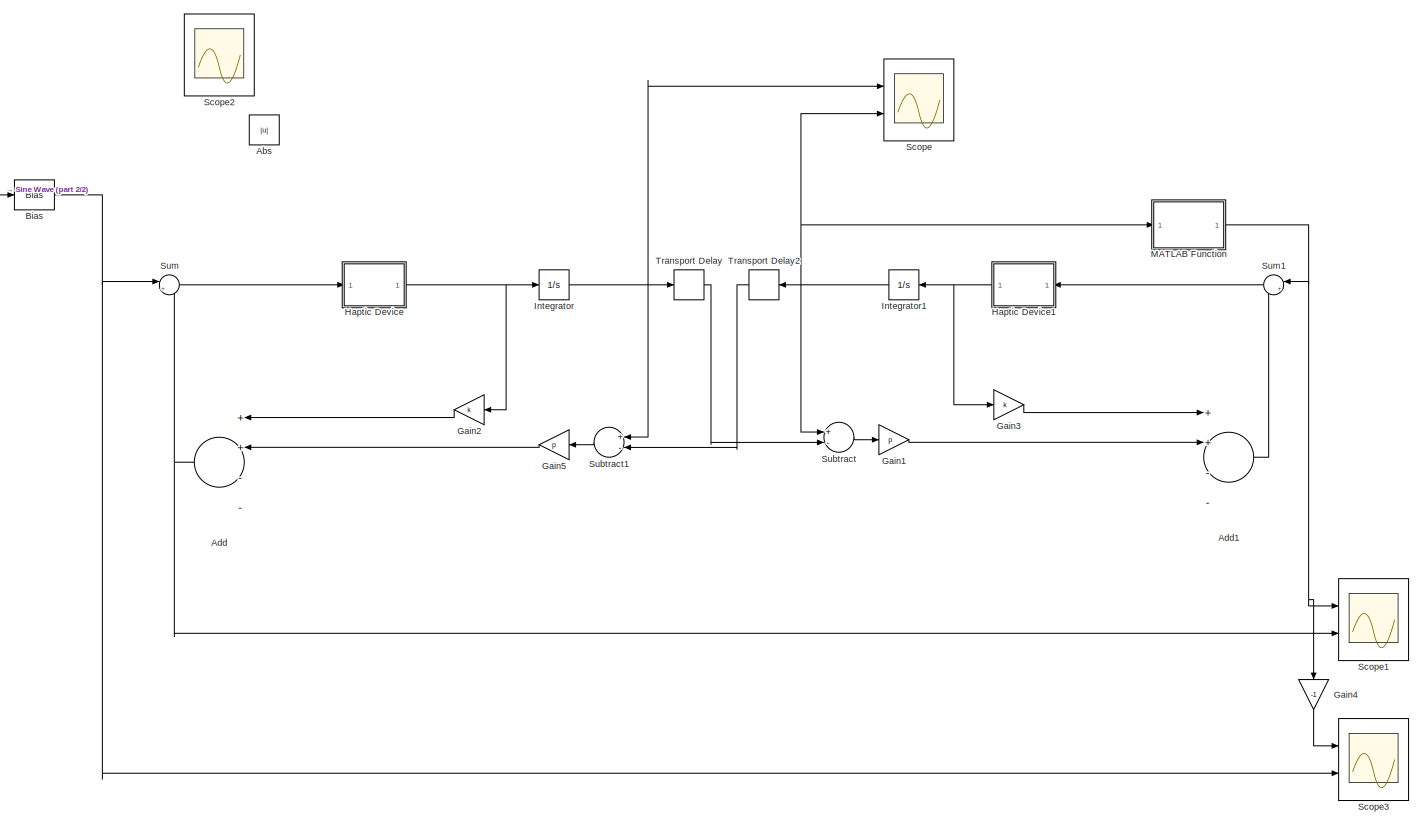
[diagram: root canvas - part 1/2, most of the canvas]
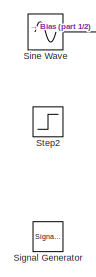
[diagram: root canvas - part 2/2, middle left region]
MODEL slx_5d9b87631e34
KIND model
CONFIG AbsTol = auto
CONFIG FixedStep = auto
CONFIG MaxStep = auto
CONFIG MinStep = auto
CONFIG RelTol = 1e-3
CONFIG SampleTimeConstraint = Unconstrained
CONFIG Solver = VariableStepAuto
CONFIG SolverMode = Auto
CONFIG SolverName = VariableStepAuto
CONFIG StartTime = 0.0
CONFIG StopTime = 100
BLOCK [Abs] Abs
  SaturateOnIntegerOverflow = off
BLOCK [Sum] Add
  InputSameDT = off
  Inputs = ++--
  OutDataTypeStr = Inherit: Inherit via internal rule
  Ports = [4, 1]
  SaturateOnIntegerOverflow = off
BLOCK [Sum] Add1
  InputSameDT = off
  Inputs = ++--
  OutDataTypeStr = Inherit: Inherit via internal rule
  Ports = [4, 1]
  SaturateOnIntegerOverflow = off
BLOCK [Bias] Bias
  Bias = 1
  SaturateOnIntegerOverflow = off
BLOCK [Gain] Gain1
  Gain = p
  OutDataTypeStr = Inherit: Inherit via internal rule
  ParamDataTypeStr = Inherit: Inherit via internal rule
  SaturateOnIntegerOverflow = off
BLOCK [Gain] Gain2
  Gain = k
  OutDataTypeStr = Inherit: Inherit via internal rule
  ParamDataTypeStr = Inherit: Inherit via internal rule
  SaturateOnIntegerOverflow = off
BLOCK [Gain] Gain3
  Gain = k
  OutDataTypeStr = Inherit: Inherit via internal rule
  ParamDataTypeStr = Inherit: Inherit via internal rule
  SaturateOnIntegerOverflow = off
BLOCK [Gain] Gain4
  Gain = -1
  OutDataTypeStr = Inherit: Inherit via internal rule
  ParamDataTypeStr = Inherit: Inherit via internal rule
  SaturateOnIntegerOverflow = off
BLOCK [Gain] Gain5
  Gain = p
  OutDataTypeStr = Inherit: Inherit via internal rule
  ParamDataTypeStr = Inherit: Inherit via internal rule
  SaturateOnIntegerOverflow = off
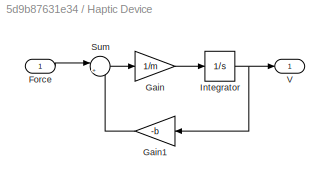
BLOCK [SubSystem] Haptic Device
  Ports = [1, 1]
  RequestExecContextInheritance = off
  Variant = off
BLOCK [Inport] Haptic Device/Force
  IconDisplay = Port number
BLOCK [Gain] Haptic Device/Gain
  Gain = 1/m
  OutDataTypeStr = Inherit: Inherit via internal rule
  ParamDataTypeStr = Inherit: Inherit via internal rule
  SaturateOnIntegerOverflow = off
BLOCK [Gain] Haptic Device/Gain1
  Gain = -b
  OutDataTypeStr = Inherit: Inherit via internal rule
  ParamDataTypeStr = Inherit: Inherit via internal rule
  SaturateOnIntegerOverflow = off
BLOCK [Integrator] Haptic Device/Integrator
  Ports = [1, 1]
BLOCK [Sum] Haptic Device/Sum
  IconShape = round
  InputSameDT = off
  Inputs = |++
  OutDataTypeStr = Inherit: Inherit via internal rule
  Ports = [2, 1]
  SaturateOnIntegerOverflow = off
BLOCK [Outport] Haptic Device/V
  IconDisplay = Port number
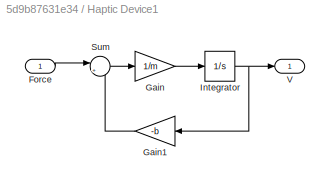
BLOCK [SubSystem] Haptic Device1
  Ports = [1, 1]
  RequestExecContextInheritance = off
  Variant = off
BLOCK [Inport] Haptic Device1/Force
  IconDisplay = Port number
BLOCK [Gain] Haptic Device1/Gain
  Gain = 1/m
  OutDataTypeStr = Inherit: Inherit via internal rule
  ParamDataTypeStr = Inherit: Inherit via internal rule
  SaturateOnIntegerOverflow = off
BLOCK [Gain] Haptic Device1/Gain1
  Gain = -b
  OutDataTypeStr = Inherit: Inherit via internal rule
  ParamDataTypeStr = Inherit: Inherit via internal rule
  SaturateOnIntegerOverflow = off
BLOCK [Integrator] Haptic Device1/Integrator
  Ports = [1, 1]
BLOCK [Sum] Haptic Device1/Sum
  IconShape = round
  InputSameDT = off
  Inputs = |++
  OutDataTypeStr = Inherit: Inherit via internal rule
  Ports = [2, 1]
  SaturateOnIntegerOverflow = off
BLOCK [Outport] Haptic Device1/V
  IconDisplay = Port number
BLOCK [Integrator] Integrator
  Ports = [1, 1]
BLOCK [Integrator] Integrator1
  Ports = [1, 1]
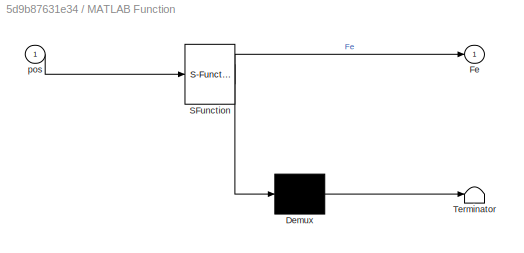
BLOCK [SubSystem] MATLAB Function
  ErrorFcn = Stateflow.Translate.translate
  PermitHierarchicalResolution = ExplicitOnly
  Ports = [1, 1]
  RequestExecContextInheritance = off
  SFBlockType = MATLAB Function
  TreatAsAtomicUnit = on
  Variant = off
BLOCK [Demux] MATLAB Function/ Demux 
  Outputs = 1
  Ports = [1, 1]
BLOCK [S-Function] MATLAB Function/ SFunction 
  EnableBusSupport = on
  FunctionName = sf_sfun
  PortCounts = [1 2]
  Ports = [1, 2]
  SFunctionDeploymentMode = off
  Tag = Stateflow S-Function Position_Drift_Checking 2
BLOCK [Terminator] MATLAB Function/ Terminator 
BLOCK [Outport] MATLAB Function/Fe
  IconDisplay = Port number
BLOCK [Inport] MATLAB Function/pos
  IconDisplay = Port number
BLOCK [Scope] Scope
  NumInputPorts = 2
  Ports = [2]
  ScopeSpecificationString = Simulink.scopes.TimeScopeBlockCfg('CurrentConfiguration', extmgr.ConfigurationSet(extmgr.Configuration('Core','General UI',true),extmgr.Configuration('Core','Source UI',true),extmgr.Configuration('Sources','WiredSimulink',true,'DataLoggingVariableName','ScopeData1'),extmgr.Configuration('Visuals','Time Domain',true,'SerializedDisplays',{struct('MinYLimReal','-0.01035','MaxYLimReal','0.09316','YLab...<+1485ch>
BLOCK [Scope] Scope1
  NumInputPorts = 2
  Ports = [2]
  ScopeSpecificationString = Simulink.scopes.TimeScopeBlockCfg('CurrentConfiguration', extmgr.ConfigurationSet(extmgr.Configuration('Core','General UI',true),extmgr.Configuration('Core','Source UI',true),extmgr.Configuration('Sources','WiredSimulink',true),extmgr.Configuration('Visuals','Time Domain',true,'SerializedDisplays',{struct('MinYLimReal','-1.27312','MaxYLimReal','0.14146','YLabelReal','','MinYLimMag','0.00000','MaxY...<+1443ch>
BLOCK [Scope] Scope2
  NumInputPorts = 2
  Ports = [2]
  ScopeSpecificationString = Simulink.scopes.TimeScopeBlockCfg('CurrentConfiguration', extmgr.ConfigurationSet(extmgr.Configuration('Core','General UI',true),extmgr.Configuration('Core','Source UI',true),extmgr.Configuration('Sources','WiredSimulink',true,'DataLoggingVariableName','ScopeData2'),extmgr.Configuration('Visuals','Time Domain',true,'SerializedDisplays',{struct('MinYLimReal','-2.5','MaxYLimReal','2.5','YLabelReal',...<+1431ch>
BLOCK [Scope] Scope3
  NumInputPorts = 2
  Ports = [2]
  ScopeSpecificationString = Simulink.scopes.TimeScopeBlockCfg('CurrentConfiguration', extmgr.ConfigurationSet(extmgr.Configuration('Core','General UI',true),extmgr.Configuration('Core','Source UI',true),extmgr.Configuration('Sources','WiredSimulink',true,'DataLoggingVariableName','ScopeData1'),extmgr.Configuration('Visuals','Time Domain',true,'SerializedDisplays',{struct('MinYLimReal','-1.49984','MaxYLimReal','3.49996','YLab...<+1470ch>
BLOCK [SignalGenerator] Signal Generator
  Amplitude = -1
  Frequency = 0.05*pi
  Ports = [0, 1]
  Units = rad/sec
  WaveForm = square
BLOCK [Sin] Sine Wave
  Amplitude = 2
  Frequency = pi/5
  Ports = [0, 1]
  SampleTime = 0
BLOCK [Step] Step2
  SampleTime = 0
  Time = 0
BLOCK [Sum] Subtract
  InputSameDT = off
  Inputs = +-
  OutDataTypeStr = Inherit: Inherit via internal rule
  Ports = [2, 1]
  SaturateOnIntegerOverflow = off
BLOCK [Sum] Subtract1
  InputSameDT = off
  Inputs = +-
  OutDataTypeStr = Inherit: Inherit via internal rule
  Ports = [2, 1]
  SaturateOnIntegerOverflow = off
BLOCK [Sum] Sum
  IconShape = round
  InputSameDT = off
  Inputs = |++
  OutDataTypeStr = Inherit: Inherit via internal rule
  Ports = [2, 1]
  SaturateOnIntegerOverflow = off
BLOCK [Sum] Sum1
  IconShape = round
  InputSameDT = off
  Inputs = |++
  OutDataTypeStr = Inherit: Inherit via internal rule
  Ports = [2, 1]
  SaturateOnIntegerOverflow = off
BLOCK [TransportDelay] Transport Delay
  DelayTime = t
  Ports = [1, 1]
BLOCK [TransportDelay] Transport Delay2
  DelayTime = t
  Ports = [1, 1]
LINE Add1:1 -> Sum1:2
NET Add:1 -> Scope1:2, Sum:2
NET Bias:1 -> Scope3:2, Sum:1
LINE Gain1:1 -> Add1:2
LINE Gain2:1 -> Add:1
LINE Gain3:1 -> Add1:1
LINE Gain4:1 -> Scope3:1
LINE Gain5:1 -> Add:2
LINE Haptic Device/Force:1 -> Haptic Device/Sum:1
LINE Haptic Device/Gain1:1 -> Haptic Device/Sum:2
LINE Haptic Device/Gain:1 -> Haptic Device/Integrator:1
NET Haptic Device/Integrator:1 -> Haptic Device/Gain1:1, Haptic Device/V:1
LINE Haptic Device/Sum:1 -> Haptic Device/Gain:1
LINE Haptic Device1/Force:1 -> Haptic Device1/Sum:1
LINE Haptic Device1/Gain1:1 -> Haptic Device1/Sum:2
LINE Haptic Device1/Gain:1 -> Haptic Device1/Integrator:1
NET Haptic Device1/Integrator:1 -> Haptic Device1/Gain1:1, Haptic Device1/V:1
LINE Haptic Device1/Sum:1 -> Haptic Device1/Gain:1
NET Haptic Device1:1 -> Gain3:1, Integrator1:1
NET Haptic Device:1 -> Gain2:1, Integrator:1
NET Integrator1:1 -> MATLAB Function:1, Scope:2, Subtract:1, Transport Delay2:1
NET Integrator:1 -> Scope:1, Subtract1:1, Transport Delay:1
NET MATLAB Function:1 -> Gain4:1, Scope1:1, Sum1:1
LINE Sine Wave:1 -> Bias:1
LINE Subtract1:1 -> Gain5:1
LINE Subtract:1 -> Gain1:1
LINE Sum1:1 -> Haptic Device1:1
LINE Sum:1 -> Haptic Device:1
LINE Transport Delay2:1 -> Subtract1:2
LINE Transport Delay:1 -> Subtract:2
note: NET lines group one-source signal fan-out (src -> all destinations, sorted); 1:1 wires keep LINE
CHART MATLAB Function states=1 transitions=1
  STATE_LABEL 'eML_blk_kernel()'
  STATE_LABEL 'SCRIPT:\nfunction Fe = Envir(pos)\n%#codegen\nif pos>=0.05\n    Fe=-(pos-0.05)*1000;\nelse\n    Fe=0;\nend'
